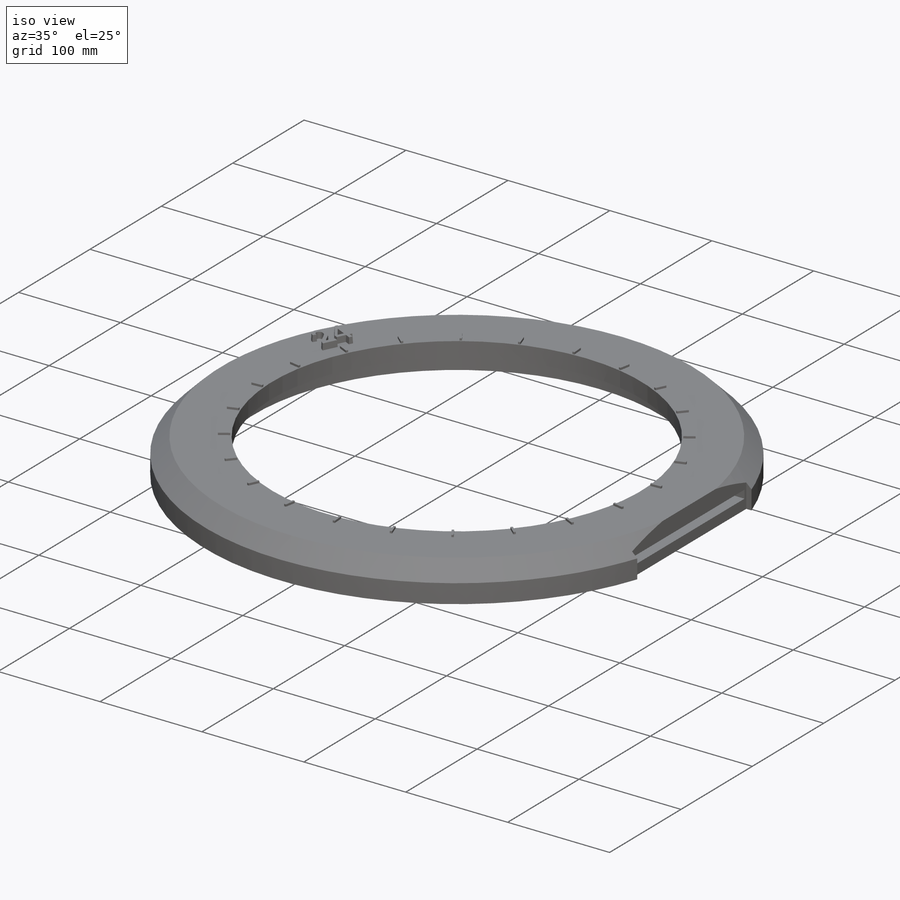
[diagram: iso view]
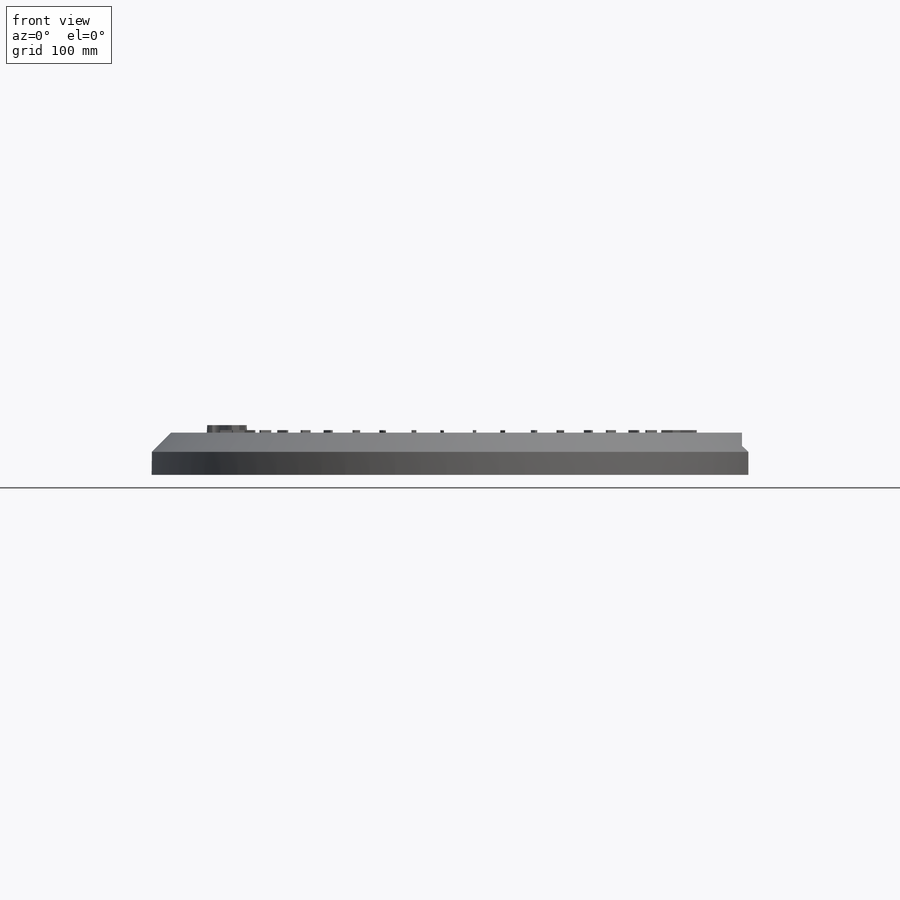
[diagram: front view]
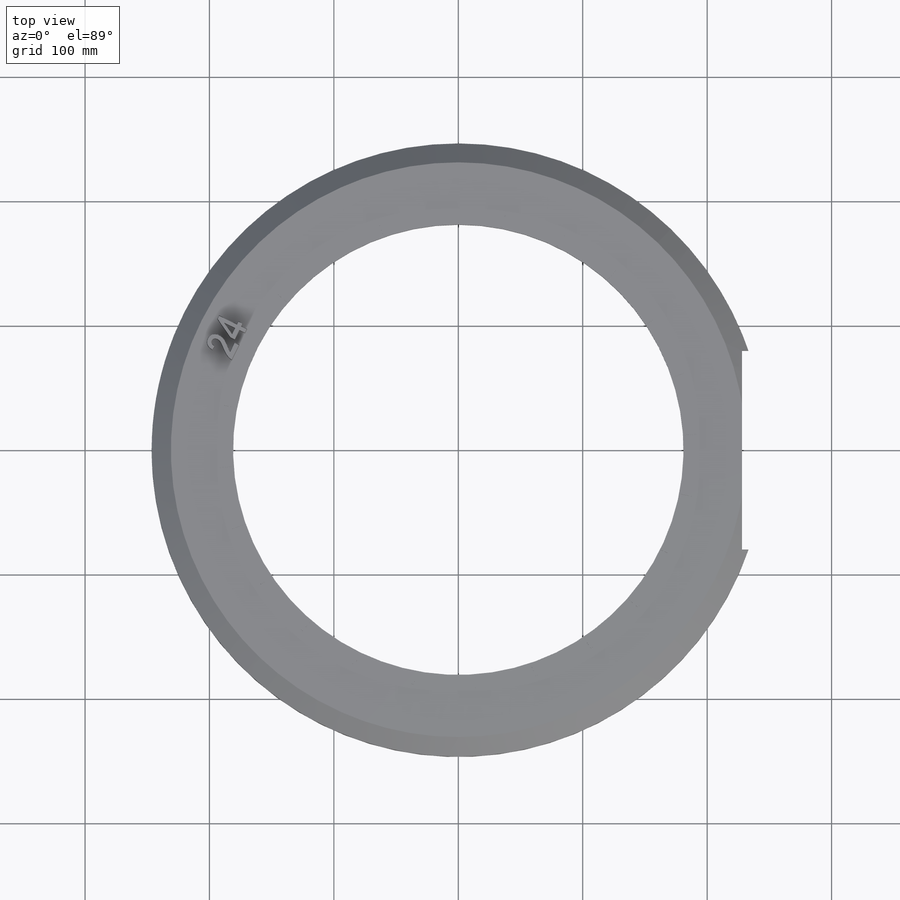
[diagram: top view]
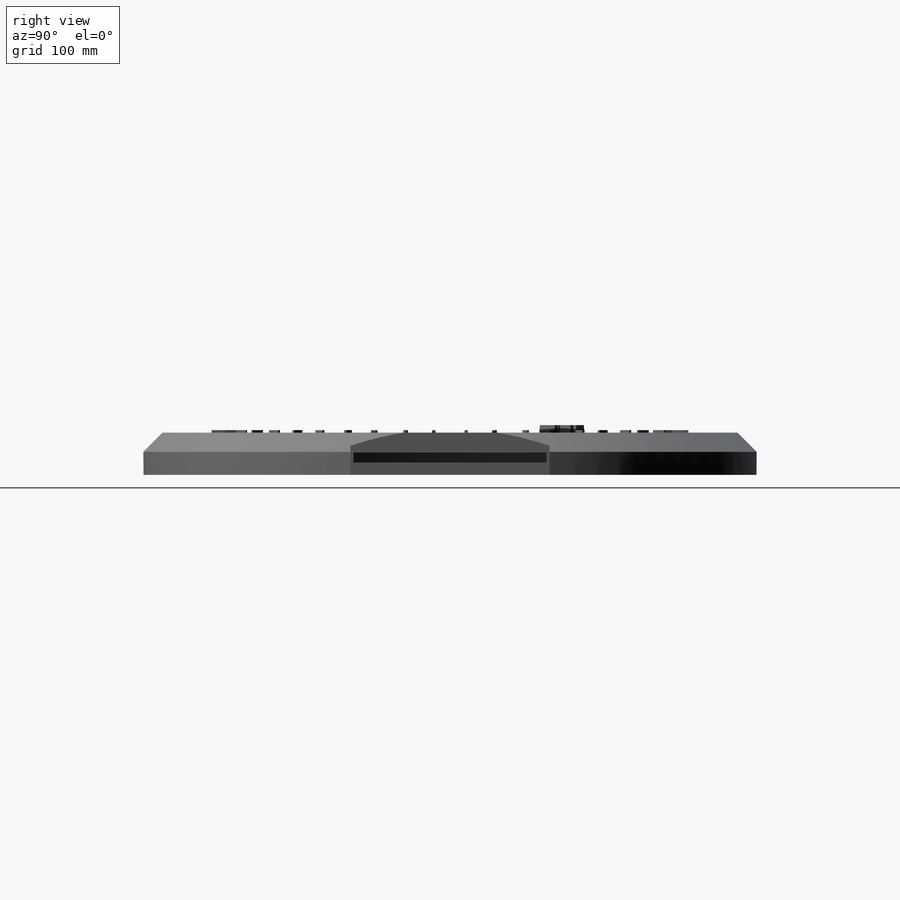
[diagram: right view]
SOLIDWORKS PART (.sldprt)
format: sldprt  version: not decoded by parser v0  size: 658,432 bytes
history: native  units: mm
features: sketch x5, cut_extrude x2, extrude x2, material x1, revolve x1, pattern_circular x1 (+11 scaffold rows collapsed)
feature tree (23):
  scaffold x11  (default folders/planes/origin — collapsed)
  material  "Material <not specified>"
  sketch  "Sketch1"  dims[c1.D1=362.0mm c1.D2=50.0mm c1.D3=388.0mm c1.D4=9.0mm c1.D5=15.0mm c1.D6=~18.055943mm c2.D6=45.0deg c2.D7=10.0mm]
  revolve  "Revolve1"  Angle=360deg
  sketch  "Sketch2"  dims[D1=80.0mm D2=160.0mm D3=50.0mm D4=25.0mm]
  cut_extrude  "Cut-Extrude1"  Depth=50mm
  sketch  "Sketch3"  dims[D1=16.0mm D2=8.0mm D3=155.0mm D4=77.5mm]
  cut_extrude  "Cut-Extrude2"  Depth=80mm
  sketch  "Sketch4"  dims[c1.D1=2.0mm c1.D2=10.0mm c1.D3=~260.173656mm c2.D3=4.0deg c2.D4=2.0mm c2.D5=10.0mm c2.D6=182.0mm]
  extrude  "Boss-Extrude1"  Depth=2mm
  pattern_circular  "CirPattern1"  Count=24 Angle=15deg
  sketch  "Sketch6"  dims[c1.D1=~137.352846mm c2.D1=64.0deg c2.D2=40.0mm c2.D3=195.0mm]
  extrude  "Boss-Extrude3"  Depth=6mm
decode coverage: 11 of 11 modeling features carry decoded parameters
note: ~ marks probable driven/reference dimensions
note: suppression state not decoded; provenance and decode notes live in map.json
